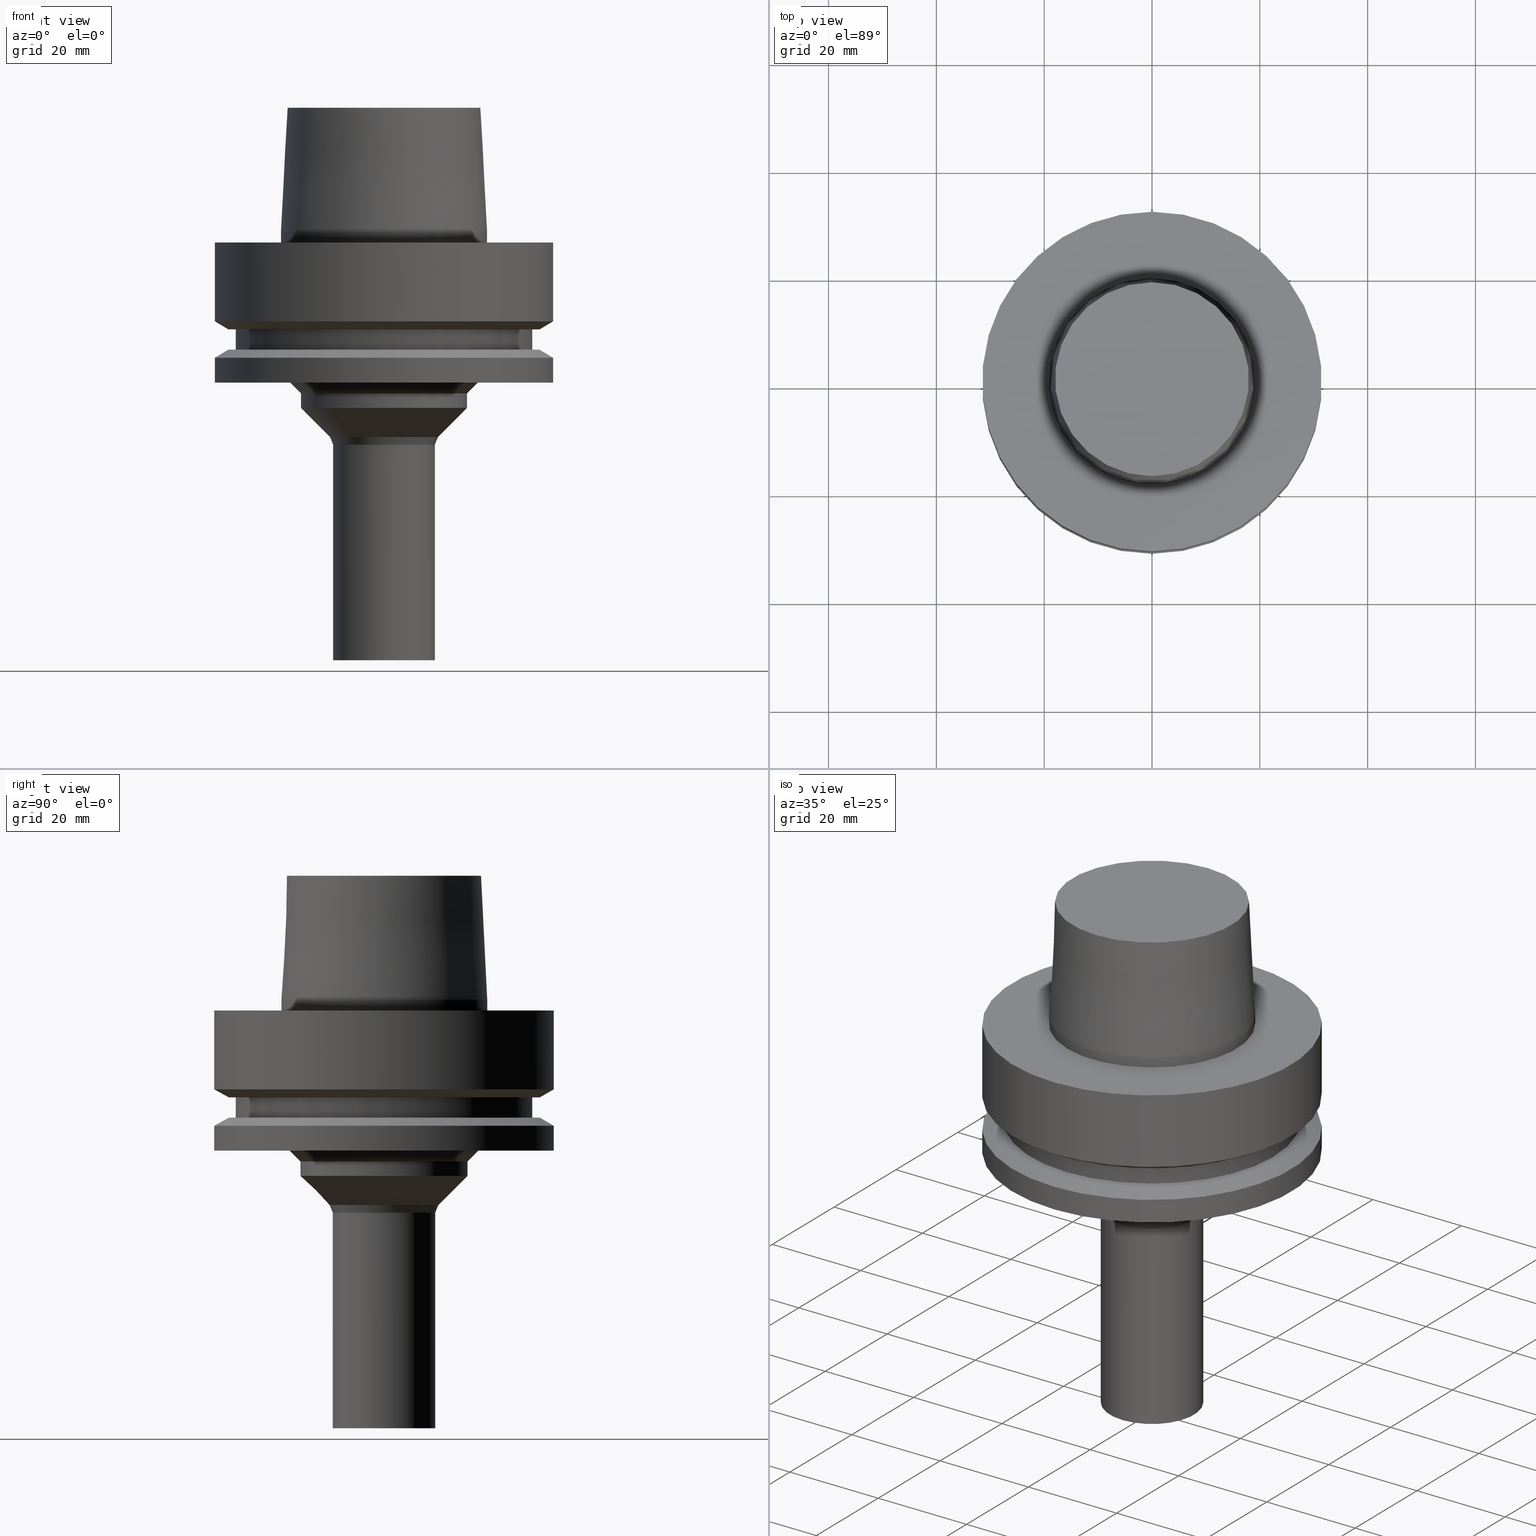
[diagram: canonical four-view strip — front | top / right | iso, engineering-drawing reading convention]
A machine part, canonical four-view strip (front | top / right | iso — engineering-drawing reading convention). The complete STEP part file that produces these views, byte-faithful:
ISO-10303-21;
HEADER;
FILE_DESCRIPTION((''),'1');
FILE_NAME('//Big_tech03/bigt/Translate/21_\X2\8F2A90ED7DDA\X0\-DXF/21_CK\X2\30DC30FC30EA30F330B030B730B930C630E0\X0\/01_CK\X2\30D930FC30B930DB30EB30C0\X0\ CK/HSK/F 63/HSK-F63-CK1-78.stp','2012-05-17T07:51:24',(''),(''),'Spatial Interop R18','Kubotek KeyCreator V8.5.1 (14335)',' ');
FILE_SCHEMA(('CONFIG_CONTROL_DESIGN'));
ENDSEC;
DATA;
#1=DESIGN_CONTEXT('',#27,'design');
#2=APPLICATION_PROTOCOL_DEFINITION('INTERNATIONAL STANDARD','config_control_design',1994,#27);
#3=PRODUCT_CATEGORY_RELATIONSHIP('NONE','NONE',#28,#29);
#4=DATE_AND_TIME(#30,#31);
#5=DATE_TIME_ROLE('creation_date');
#6=DATE_TIME_ROLE('classification_date');
#7=PERSON_AND_ORGANIZATION_ROLE('creator');
#8=PERSON_AND_ORGANIZATION_ROLE('design_supplier');
#9=PERSON_AND_ORGANIZATION_ROLE('classification_officer');
#10=PERSON_AND_ORGANIZATION_ROLE('design_owner');
#11=APPROVAL_PERSON_ORGANIZATION(#32,#33,#34);
#12=APPROVAL_DATE_TIME(#4,#33);
#13=CC_DESIGN_APPROVAL(#33,(#35,#36,#37));
#14=CC_DESIGN_DATE_AND_TIME_ASSIGNMENT(#4,#5,(#37));
#15=CC_DESIGN_DATE_AND_TIME_ASSIGNMENT(#4,#6,(#35));
#16=CC_DESIGN_PERSON_AND_ORGANIZATION_ASSIGNMENT(#32,#10,(#38));
#17=CC_DESIGN_PERSON_AND_ORGANIZATION_ASSIGNMENT(#32,#7,(#37));
#18=CC_DESIGN_PERSON_AND_ORGANIZATION_ASSIGNMENT(#32,#7,(#36));
#19=CC_DESIGN_PERSON_AND_ORGANIZATION_ASSIGNMENT(#32,#8,(#36));
#20=CC_DESIGN_SECURITY_CLASSIFICATION(#35,(#36));
#21=CC_DESIGN_PERSON_AND_ORGANIZATION_ASSIGNMENT(#32,#9,(#35));
#22=SHAPE_DEFINITION_REPRESENTATION(#39,#40);
#23= (GEOMETRIC_REPRESENTATION_CONTEXT(3)GLOBAL_UNCERTAINTY_ASSIGNED_CONTEXT((#43))GLOBAL_UNIT_ASSIGNED_CONTEXT((#45,#46,#47))REPRESENTATION_CONTEXT('NONE','WORKSPACE'));
#27=APPLICATION_CONTEXT('CONFIGURATION CONTROLLED 3D DESIGNS OF MECHANICAL PARTS AND ASSEMBLIES');
#28=PRODUCT_CATEGORY('part','NONE');
#29=PRODUCT_RELATED_PRODUCT_CATEGORY('detail',' ',(#38));
#30=CALENDAR_DATE(2012,17,4);
#31=LOCAL_TIME(16,51,24.0,#49);
#32=PERSON_AND_ORGANIZATION(#50,#51);
#33=APPROVAL(#52,'SOLID MODEL');
#34=APPROVAL_ROLE('APPROVED');
#35=SECURITY_CLASSIFICATION('','',#53);
#36=PRODUCT_DEFINITION_FORMATION_WITH_SPECIFIED_SOURCE(' ','NONE',#38,.NOT_KNOWN.);
#37=PRODUCT_DEFINITION('NONE','NONE',#36,#1);
#38=PRODUCT('1','1','PART-1-DESC',(#54));
#39=PRODUCT_DEFINITION_SHAPE('NONE','NONE',#37);
#40=ADVANCED_BREP_SHAPE_REPRESENTATION('1',(#55,#56),#23);
#43=UNCERTAINTY_MEASURE_WITH_UNIT(LENGTH_MEASURE(1.0E-006),#45,'','');
#45= (CONVERSION_BASED_UNIT('MILLIMETRE',#59)LENGTH_UNIT()NAMED_UNIT(#62));
#46= (NAMED_UNIT(#64)PLANE_ANGLE_UNIT()SI_UNIT($,.RADIAN.));
#47= (NAMED_UNIT(#64)SOLID_ANGLE_UNIT()SI_UNIT($,.STERADIAN.));
#49=COORDINATED_UNIVERSAL_TIME_OFFSET(9,0,.AHEAD.);
#50=PERSON('','UNSPECIFIED',$,$,$,$);
#51=ORGANIZATION('UNSPECIFIED','UNSPECIFIED','UNSPECIFIED');
#52=APPROVAL_STATUS('approved');
#53=SECURITY_CLASSIFICATION_LEVEL('unclassified');
#54=MECHANICAL_CONTEXT('',#27,'mechanical');
#55=MANIFOLD_SOLID_BREP('1',#70);
#56=AXIS2_PLACEMENT_3D('',#71,#72,#73);
#59=LENGTH_MEASURE_WITH_UNIT(LENGTH_MEASURE(1.0),#74);
#62=DIMENSIONAL_EXPONENTS(1.0,0.0,0.0,0.0,0.0,0.0,0.0);
#64=DIMENSIONAL_EXPONENTS(0.0,0.0,0.0,0.0,0.0,0.0,0.0);
#70=CLOSED_SHELL('',(#75,#76,#77,#78,#79,#80,#81,#82,#83,#84,#85,#86,#87,#88,#89,#90,#91,#92));
#71=CARTESIAN_POINT('',(0.0,0.0,0.0));
#72=DIRECTION('',(0.0,0.0,1.0));
#73=DIRECTION('',(1.0,0.0,0.0));
#74= (NAMED_UNIT(#62)LENGTH_UNIT()SI_UNIT(.MILLI.,.METRE.));
#75=ADVANCED_FACE('',(#94,#95),#96,.T.);
#76=ADVANCED_FACE('',(#97,#98),#99,.T.);
#77=ADVANCED_FACE('',(#100,#101),#102,.T.);
#78=ADVANCED_FACE('',(#103,#104),#105,.T.);
#79=ADVANCED_FACE('',(#106,#107),#108,.T.);
#80=ADVANCED_FACE('',(#109,#110),#111,.T.);
#81=ADVANCED_FACE('',(#112,#113),#114,.T.);
#82=ADVANCED_FACE('',(#115,#116),#117,.T.);
#83=ADVANCED_FACE('',(#118,#119),#120,.T.);
#84=ADVANCED_FACE('',(#121,#122),#123,.T.);
#85=ADVANCED_FACE('',(#124,#125),#126,.T.);
#86=ADVANCED_FACE('',(#127,#128),#129,.T.);
#87=ADVANCED_FACE('',(#130,#131),#132,.T.);
#88=ADVANCED_FACE('',(#133,#134),#135,.T.);
#89=ADVANCED_FACE('',(#136,#137),#138,.T.);
#90=ADVANCED_FACE('',(#139),#140,.T.);
#91=ADVANCED_FACE('',(#141),#142,.T.);
#92=ADVANCED_FACE('',(#143,#144),#145,.T.);
#94=FACE_BOUND('',#146,.T.);
#95=FACE_BOUND('',#147,.T.);
#96=CYLINDRICAL_SURFACE('',#148,19.15);
#97=FACE_OUTER_BOUND('',#149,.T.);
#98=FACE_BOUND('',#150,.T.);
#99=PLANE('',#151);
#100=FACE_BOUND('',#152,.T.);
#101=FACE_BOUND('',#153,.T.);
#102=CYLINDRICAL_SURFACE('',#154,31.5);
#103=FACE_BOUND('',#155,.T.);
#104=FACE_BOUND('',#156,.T.);
#105=CONICAL_SURFACE('',#157,30.19879763,1.04719755326565);
#106=FACE_BOUND('',#158,.T.);
#107=FACE_OUTER_BOUND('',#159,.T.);
#108=PLANE('',#160);
#109=FACE_BOUND('',#161,.T.);
#110=FACE_BOUND('',#162,.T.);
#111=CYLINDRICAL_SURFACE('',#163,27.5);
#112=FACE_OUTER_BOUND('',#164,.T.);
#113=FACE_BOUND('',#165,.T.);
#114=PLANE('',#166);
#115=FACE_BOUND('',#167,.T.);
#116=FACE_BOUND('',#168,.T.);
#117=CONICAL_SURFACE('',#169,30.19879763,1.04719755326565);
#118=FACE_BOUND('',#170,.T.);
#119=FACE_BOUND('',#171,.T.);
#120=CYLINDRICAL_SURFACE('',#172,31.5);
#121=FACE_BOUND('',#173,.T.);
#122=FACE_OUTER_BOUND('',#174,.T.);
#123=PLANE('',#175);
#124=FACE_BOUND('',#176,.T.);
#125=FACE_BOUND('',#177,.T.);
#126=CONICAL_SURFACE('',#178,16.5,0.785398163397448);
#127=FACE_BOUND('',#179,.T.);
#128=FACE_BOUND('',#180,.T.);
#129=CYLINDRICAL_SURFACE('',#181,15.5);
#130=FACE_BOUND('',#182,.T.);
#131=FACE_BOUND('',#183,.T.);
#132=CONICAL_SURFACE('',#184,12.7928932171354,0.785398162421138);
#133=FACE_BOUND('',#185,.T.);
#134=FACE_BOUND('',#186,.T.);
#135=CONICAL_SURFACE('',#187,9.79289321713541,0.392699081698725);
#136=FACE_BOUND('',#188,.T.);
#137=FACE_BOUND('',#189,.T.);
#138=CYLINDRICAL_SURFACE('',#190,9.5);
#139=FACE_OUTER_BOUND('',#191,.T.);
#140=PLANE('',#192);
#141=FACE_OUTER_BOUND('',#193,.T.);
#142=PLANE('',#194);
#143=FACE_BOUND('',#195,.T.);
#144=FACE_BOUND('',#196,.T.);
#145=CONICAL_SURFACE('',#197,18.5750000005215,0.049958395676703);
#146=EDGE_LOOP('',(#198));
#147=EDGE_LOOP('',(#199));
#148=AXIS2_PLACEMENT_3D('',#200,#201,#202);
#149=EDGE_LOOP('',(#203));
#150=EDGE_LOOP('',(#204));
#151=AXIS2_PLACEMENT_3D('',#205,#206,#207);
#152=EDGE_LOOP('',(#208));
#153=EDGE_LOOP('',(#209));
#154=AXIS2_PLACEMENT_3D('',#210,#211,#212);
#155=EDGE_LOOP('',(#213));
#156=EDGE_LOOP('',(#214));
#157=AXIS2_PLACEMENT_3D('',#215,#216,#217);
#158=EDGE_LOOP('',(#218));
#159=EDGE_LOOP('',(#219));
#160=AXIS2_PLACEMENT_3D('',#220,#221,#222);
#161=EDGE_LOOP('',(#223));
#162=EDGE_LOOP('',(#224));
#163=AXIS2_PLACEMENT_3D('',#225,#226,#227);
#164=EDGE_LOOP('',(#228));
#165=EDGE_LOOP('',(#229));
#166=AXIS2_PLACEMENT_3D('',#230,#231,#232);
#167=EDGE_LOOP('',(#233));
#168=EDGE_LOOP('',(#234));
#169=AXIS2_PLACEMENT_3D('',#235,#236,#237);
#170=EDGE_LOOP('',(#238));
#171=EDGE_LOOP('',(#239));
#172=AXIS2_PLACEMENT_3D('',#240,#241,#242);
#173=EDGE_LOOP('',(#243));
#174=EDGE_LOOP('',(#244));
#175=AXIS2_PLACEMENT_3D('',#245,#246,#247);
#176=EDGE_LOOP('',(#248));
#177=EDGE_LOOP('',(#249));
#178=AXIS2_PLACEMENT_3D('',#250,#251,#252);
#179=EDGE_LOOP('',(#253));
#180=EDGE_LOOP('',(#254));
#181=AXIS2_PLACEMENT_3D('',#255,#256,#257);
#182=EDGE_LOOP('',(#258));
#183=EDGE_LOOP('',(#259));
#184=AXIS2_PLACEMENT_3D('',#260,#261,#262);
#185=EDGE_LOOP('',(#263));
#186=EDGE_LOOP('',(#264));
#187=AXIS2_PLACEMENT_3D('',#265,#266,#267);
#188=EDGE_LOOP('',(#268));
#189=EDGE_LOOP('',(#269));
#190=AXIS2_PLACEMENT_3D('',#270,#271,#272);
#191=EDGE_LOOP('',(#273));
#192=AXIS2_PLACEMENT_3D('',#274,#275,#276);
#193=EDGE_LOOP('',(#277));
#194=AXIS2_PLACEMENT_3D('',#278,#279,#280);
#195=EDGE_LOOP('',(#281));
#196=EDGE_LOOP('',(#282));
#197=AXIS2_PLACEMENT_3D('',#283,#284,#285);
#198=ORIENTED_EDGE('',*,*,#286,.F.);
#199=ORIENTED_EDGE('',*,*,#287,.T.);
#200=CARTESIAN_POINT('',(-6.12323399573677E-017,-1.22464679914735E-016,1.0));
#201=DIRECTION('',(-6.12323399573677E-017,-1.22464679914735E-016,1.0));
#202=DIRECTION('',(-1.23259516440783E-032,1.0,1.22464679914735E-016));
#203=ORIENTED_EDGE('',*,*,#288,.F.);
#204=ORIENTED_EDGE('',*,*,#286,.T.);
#205=CARTESIAN_POINT('',(-3.09093108388415E-031,25.325,3.05141801884067E-015));
#206=DIRECTION('',(-6.12323399573677E-017,-1.14367513922832E-016,1.0));
#207=DIRECTION('',(1.18301432233709E-032,-1.0,-1.14367513922832E-016));
#208=ORIENTED_EDGE('',*,*,#289,.F.);
#209=ORIENTED_EDGE('',*,*,#288,.T.);
#210=CARTESIAN_POINT('',(4.47684973986342E-016,8.95369947972684E-016,-7.311250465));
#211=DIRECTION('',(-6.12323399573677E-017,-1.22464679914735E-016,1.0));
#212=DIRECTION('',(-1.23259516440783E-032,1.0,1.22464679914735E-016));
#213=ORIENTED_EDGE('',*,*,#290,.F.);
#214=ORIENTED_EDGE('',*,*,#289,.T.);
#215=CARTESIAN_POINT('',(9.41370714892619E-016,1.88274142978524E-015,-15.373750465));
#216=DIRECTION('',(-6.12323399573677E-017,-1.22464679914735E-016,1.0));
#217=DIRECTION('',(-1.23259516440783E-032,1.0,1.22464679914735E-016));
#218=ORIENTED_EDGE('',*,*,#291,.F.);
#219=ORIENTED_EDGE('',*,*,#290,.T.);
#220=CARTESIAN_POINT('',(9.87371481812553E-016,28.19879763,-16.125));
#221=DIRECTION('',(6.12323399573677E-017,1.22464679914735E-016,-1.0));
#222=DIRECTION('',(-1.23259516440783E-032,1.0,1.22464679914735E-016));
#223=ORIENTED_EDGE('',*,*,#292,.F.);
#224=ORIENTED_EDGE('',*,*,#291,.T.);
#225=CARTESIAN_POINT('',(1.10218211923262E-015,2.20436423846524E-015,-18.0));
#226=DIRECTION('',(-6.12323399573677E-017,-1.22464679914735E-016,1.0));
#227=DIRECTION('',(-1.23259516440783E-032,1.0,1.22464679914735E-016));
#228=ORIENTED_EDGE('',*,*,#293,.F.);
#229=ORIENTED_EDGE('',*,*,#292,.T.);
#230=CARTESIAN_POINT('',(1.21699275665268E-015,28.19879763,-19.875));
#231=DIRECTION('',(-6.12323399573677E-017,-1.22464679914735E-016,1.0));
#232=DIRECTION('',(1.23259516440783E-032,-1.0,-1.22464679914735E-016));
#233=ORIENTED_EDGE('',*,*,#294,.F.);
#234=ORIENTED_EDGE('',*,*,#293,.T.);
#235=CARTESIAN_POINT('',(1.26299352357262E-015,2.52598704714523E-015,-20.626249535));
#236=DIRECTION('',(6.12323399573677E-017,1.22464679914735E-016,-1.0));
#237=DIRECTION('',(-1.23259516440783E-032,1.0,1.22464679914735E-016));
#238=ORIENTED_EDGE('',*,*,#295,.F.);
#239=ORIENTED_EDGE('',*,*,#294,.T.);
#240=CARTESIAN_POINT('',(1.45051756469205E-015,2.90103512938411E-015,-23.688749535));
#241=DIRECTION('',(-6.12323399573677E-017,-1.22464679914735E-016,1.0));
#242=DIRECTION('',(-1.23259516440783E-032,1.0,1.22464679914735E-016));
#243=ORIENTED_EDGE('',*,*,#296,.F.);
#244=ORIENTED_EDGE('',*,*,#295,.T.);
#245=CARTESIAN_POINT('',(1.59204083889156E-015,24.5,-26.0));
#246=DIRECTION('',(6.12323399573677E-017,1.22464679914735E-016,-1.0));
#247=DIRECTION('',(-1.23259516440783E-032,1.0,1.22464679914735E-016));
#248=ORIENTED_EDGE('',*,*,#297,.F.);
#249=ORIENTED_EDGE('',*,*,#296,.T.);
#250=CARTESIAN_POINT('',(1.65327317884893E-015,3.30654635769785E-015,-27.0));
#251=DIRECTION('',(-6.12323399573677E-017,-1.22464679914735E-016,1.0));
#252=DIRECTION('',(-1.23259516440783E-032,1.0,1.22464679914735E-016));
#253=ORIENTED_EDGE('',*,*,#298,.F.);
#254=ORIENTED_EDGE('',*,*,#297,.T.);
#255=CARTESIAN_POINT('',(1.79629884788715E-015,3.59259769577429E-015,-29.335786434714));
#256=DIRECTION('',(-6.12323399573677E-017,-1.22464679914735E-016,1.0));
#257=DIRECTION('',(-1.23259516440783E-032,1.0,1.22464679914735E-016));
#258=ORIENTED_EDGE('',*,*,#299,.F.);
#259=ORIENTED_EDGE('',*,*,#298,.T.);
#260=CARTESIAN_POINT('',(2.04385466012093E-015,4.08770932024185E-015,-33.3786796575786));
#261=DIRECTION('',(-6.12323399573677E-017,-1.22464679914735E-016,1.0));
#262=DIRECTION('',(-1.23259516440783E-032,1.0,1.22464679914735E-016));
#263=ORIENTED_EDGE('',*,*,#300,.F.);
#264=ORIENTED_EDGE('',*,*,#299,.T.);
#265=CARTESIAN_POINT('',(2.25291494583757E-015,4.50582989167514E-015,-36.7928932228646));
#266=DIRECTION('',(-6.12323399573677E-017,-1.22464679914735E-016,1.0));
#267=DIRECTION('',(-1.23259516440783E-032,1.0,1.22464679914735E-016));
#268=ORIENTED_EDGE('',*,*,#301,.F.);
#269=ORIENTED_EDGE('',*,*,#300,.T.);
#270=CARTESIAN_POINT('',(3.52085954754864E-015,7.04171909509728E-015,-57.5));
#271=DIRECTION('',(-6.12323399573677E-017,-1.22464679914735E-016,1.0));
#272=DIRECTION('',(-1.23259516440783E-032,1.0,1.22464679914735E-016));
#273=ORIENTED_EDGE('',*,*,#301,.T.);
#274=CARTESIAN_POINT('',(4.74550634669599E-015,4.75000000000001,-77.5));
#275=DIRECTION('',(6.12323399573677E-017,1.22464679914735E-016,-1.0));
#276=DIRECTION('',(-1.23259516440783E-032,1.0,1.22464679914735E-016));
#277=ORIENTED_EDGE('',*,*,#302,.F.);
#278=CARTESIAN_POINT('',(-1.53080849893419E-015,9.00000000052154,25.0));
#279=DIRECTION('',(-6.12323399573677E-017,-1.22464679914735E-016,1.0));
#280=DIRECTION('',(1.23259516440783E-032,-1.0,-1.22464679914735E-016));
#281=ORIENTED_EDGE('',*,*,#287,.F.);
#282=ORIENTED_EDGE('',*,*,#302,.T.);
#283=CARTESIAN_POINT('',(-8.26636589424463E-016,-1.65327317884893E-015,13.5));
#284=DIRECTION('',(6.12323399573677E-017,1.22464679914735E-016,-1.0));
#285=DIRECTION('',(-1.23259516440783E-032,1.0,1.22464679914735E-016));
#286=EDGE_CURVE('',#303,#303,#304,.T.);
#287=EDGE_CURVE('',#305,#305,#306,.T.);
#288=EDGE_CURVE('',#307,#307,#308,.T.);
#289=EDGE_CURVE('',#309,#309,#310,.T.);
#290=EDGE_CURVE('',#311,#311,#312,.T.);
#291=EDGE_CURVE('',#313,#313,#314,.T.);
#292=EDGE_CURVE('',#315,#315,#316,.T.);
#293=EDGE_CURVE('',#317,#317,#318,.T.);
#294=EDGE_CURVE('',#319,#319,#320,.T.);
#295=EDGE_CURVE('',#321,#321,#322,.T.);
#296=EDGE_CURVE('',#323,#323,#324,.T.);
#297=EDGE_CURVE('',#325,#325,#326,.T.);
#298=EDGE_CURVE('',#327,#327,#328,.T.);
#299=EDGE_CURVE('',#329,#329,#330,.T.);
#300=EDGE_CURVE('',#331,#331,#332,.T.);
#301=EDGE_CURVE('',#333,#333,#334,.T.);
#302=EDGE_CURVE('',#335,#335,#336,.T.);
#303=VERTEX_POINT('',#337);
#304=CIRCLE('',#338,19.15);
#305=VERTEX_POINT('',#339);
#306=CIRCLE('',#340,19.15);
#307=VERTEX_POINT('',#341);
#308=CIRCLE('',#342,31.5);
#309=VERTEX_POINT('',#343);
#310=CIRCLE('',#344,31.5);
#311=VERTEX_POINT('',#345);
#312=CIRCLE('',#346,28.89759526);
#313=VERTEX_POINT('',#347);
#314=CIRCLE('',#348,27.5);
#315=VERTEX_POINT('',#349);
#316=CIRCLE('',#350,27.5);
#317=VERTEX_POINT('',#351);
#318=CIRCLE('',#352,28.89759526);
#319=VERTEX_POINT('',#353);
#320=CIRCLE('',#354,31.5);
#321=VERTEX_POINT('',#355);
#322=CIRCLE('',#356,31.5);
#323=VERTEX_POINT('',#357);
#324=CIRCLE('',#358,17.5);
#325=VERTEX_POINT('',#359);
#326=CIRCLE('',#360,15.5);
#327=VERTEX_POINT('',#361);
#328=CIRCLE('',#362,15.5);
#329=VERTEX_POINT('',#363);
#330=CIRCLE('',#364,10.0857864342708);
#331=VERTEX_POINT('',#365);
#332=CIRCLE('',#366,9.5);
#333=VERTEX_POINT('',#367);
#334=CIRCLE('',#368,9.5);
#335=VERTEX_POINT('',#369);
#336=CIRCLE('',#370,18.0000000010431);
#337=CARTESIAN_POINT('',(-2.360419739841E-031,19.15,2.34519862036718E-015));
#338=AXIS2_PLACEMENT_3D('',#371,#372,#373);
#339=CARTESIAN_POINT('',(-1.22464679914736E-016,19.15,2.0));
#340=AXIS2_PLACEMENT_3D('',#374,#375,#376);
#341=CARTESIAN_POINT('',(-3.8214424279273E-031,31.5,3.75763741731416E-015));
#342=AXIS2_PLACEMENT_3D('',#377,#378,#379);
#343=CARTESIAN_POINT('',(8.95369947972684E-016,31.5,-14.62250093));
#344=AXIS2_PLACEMENT_3D('',#380,#381,#382);
#345=CARTESIAN_POINT('',(9.87371481812553E-016,28.89759526,-16.125));
#346=AXIS2_PLACEMENT_3D('',#383,#384,#385);
#347=CARTESIAN_POINT('',(9.87371481812553E-016,27.5,-16.125));
#348=AXIS2_PLACEMENT_3D('',#386,#387,#388);
#349=CARTESIAN_POINT('',(1.21699275665268E-015,27.5,-19.875));
#350=AXIS2_PLACEMENT_3D('',#389,#390,#391);
#351=CARTESIAN_POINT('',(1.21699275665268E-015,28.89759526,-19.875));
#352=AXIS2_PLACEMENT_3D('',#392,#393,#394);
#353=CARTESIAN_POINT('',(1.30899429049255E-015,31.5,-21.37749907));
#354=AXIS2_PLACEMENT_3D('',#395,#396,#397);
#355=CARTESIAN_POINT('',(1.59204083889156E-015,31.5,-26.0));
#356=AXIS2_PLACEMENT_3D('',#398,#399,#400);
#357=CARTESIAN_POINT('',(1.59204083889156E-015,17.5,-26.0));
#358=AXIS2_PLACEMENT_3D('',#401,#402,#403);
#359=CARTESIAN_POINT('',(1.71450551880629E-015,15.5,-28.0));
#360=AXIS2_PLACEMENT_3D('',#404,#405,#406);
#361=CARTESIAN_POINT('',(1.878092176968E-015,15.5,-30.6715728694281));
#362=AXIS2_PLACEMENT_3D('',#407,#408,#409);
#363=CARTESIAN_POINT('',(2.20961714327386E-015,10.0857864342708,-36.0857864457292));
#364=AXIS2_PLACEMENT_3D('',#410,#411,#412);
#365=CARTESIAN_POINT('',(2.29621274840128E-015,9.50000000000001,-37.5));
#366=AXIS2_PLACEMENT_3D('',#413,#414,#415);
#367=CARTESIAN_POINT('',(4.74550634669599E-015,9.50000000000001,-77.5));
#368=AXIS2_PLACEMENT_3D('',#416,#417,#418);
#369=CARTESIAN_POINT('',(-1.53080849893419E-015,18.0000000010431,25.0));
#370=AXIS2_PLACEMENT_3D('',#419,#420,#421);
#371=CARTESIAN_POINT('',(0.0,0.0,0.0));
#372=DIRECTION('',(6.12323399573677E-017,1.22464679914735E-016,-1.0));
#373=DIRECTION('',(-1.23259516440783E-032,1.0,1.22464679914735E-016));
#374=CARTESIAN_POINT('',(-1.22464679914735E-016,-2.44929359829471E-016,2.0));
#375=DIRECTION('',(6.12323399573677E-017,1.22464679914735E-016,-1.0));
#376=DIRECTION('',(-1.23259516440783E-032,1.0,1.22464679914735E-016));
#377=CARTESIAN_POINT('',(0.0,0.0,0.0));
#378=DIRECTION('',(6.12323399573677E-017,1.22464679914735E-016,-1.0));
#379=DIRECTION('',(-1.23259516440783E-032,1.0,1.22464679914735E-016));
#380=CARTESIAN_POINT('',(8.95369947972685E-016,1.79073989594537E-015,-14.62250093));
#381=DIRECTION('',(6.12323399573677E-017,1.22464679914735E-016,-1.0));
#382=DIRECTION('',(-1.23259516440783E-032,1.0,1.22464679914735E-016));
#383=CARTESIAN_POINT('',(9.87371481812553E-016,1.97474296362511E-015,-16.125));
#384=DIRECTION('',(6.12323399573677E-017,1.22464679914735E-016,-1.0));
#385=DIRECTION('',(-1.23259516440783E-032,1.0,1.22464679914735E-016));
#386=CARTESIAN_POINT('',(9.87371481812553E-016,1.97474296362511E-015,-16.125));
#387=DIRECTION('',(6.12323399573677E-017,1.22464679914735E-016,-1.0));
#388=DIRECTION('',(-1.23259516440783E-032,1.0,1.22464679914735E-016));
#389=CARTESIAN_POINT('',(1.21699275665268E-015,2.43398551330536E-015,-19.875));
#390=DIRECTION('',(6.12323399573677E-017,1.22464679914735E-016,-1.0));
#391=DIRECTION('',(-1.23259516440783E-032,1.0,1.22464679914735E-016));
#392=CARTESIAN_POINT('',(1.21699275665268E-015,2.43398551330536E-015,-19.875));
#393=DIRECTION('',(6.12323399573677E-017,1.22464679914735E-016,-1.0));
#394=DIRECTION('',(-1.23259516440783E-032,1.0,1.22464679914735E-016));
#395=CARTESIAN_POINT('',(1.30899429049255E-015,2.6179885809851E-015,-21.37749907));
#396=DIRECTION('',(6.12323399573677E-017,1.22464679914735E-016,-1.0));
#397=DIRECTION('',(-1.23259516440783E-032,1.0,1.22464679914735E-016));
#398=CARTESIAN_POINT('',(1.59204083889156E-015,3.18408167778312E-015,-26.0));
#399=DIRECTION('',(6.12323399573677E-017,1.22464679914735E-016,-1.0));
#400=DIRECTION('',(-1.23259516440783E-032,1.0,1.22464679914735E-016));
#401=CARTESIAN_POINT('',(1.59204083889156E-015,3.18408167778312E-015,-26.0));
#402=DIRECTION('',(6.12323399573677E-017,1.22464679914735E-016,-1.0));
#403=DIRECTION('',(-1.23259516440783E-032,1.0,1.22464679914735E-016));
#404=CARTESIAN_POINT('',(1.71450551880629E-015,3.42901103761259E-015,-28.0));
#405=DIRECTION('',(6.12323399573677E-017,1.22464679914735E-016,-1.0));
#406=DIRECTION('',(-1.23259516440783E-032,1.0,1.22464679914735E-016));
#407=CARTESIAN_POINT('',(1.878092176968E-015,3.75618435393599E-015,-30.6715728694281));
#408=DIRECTION('',(6.12323399573677E-017,1.22464679914735E-016,-1.0));
#409=DIRECTION('',(-1.23259516440783E-032,1.0,1.22464679914735E-016));
#410=CARTESIAN_POINT('',(2.20961714327386E-015,4.41923428654772E-015,-36.0857864457292));
#411=DIRECTION('',(6.12323399573677E-017,1.22464679914735E-016,-1.0));
#412=DIRECTION('',(-1.23259516440783E-032,1.0,1.22464679914735E-016));
#413=CARTESIAN_POINT('',(2.29621274840128E-015,4.59242549680257E-015,-37.5));
#414=DIRECTION('',(6.12323399573677E-017,1.22464679914735E-016,-1.0));
#415=DIRECTION('',(-1.23259516440783E-032,1.0,1.22464679914735E-016));
#416=CARTESIAN_POINT('',(4.74550634669599E-015,9.49101269339199E-015,-77.5));
#417=DIRECTION('',(6.12323399573677E-017,1.22464679914735E-016,-1.0));
#418=DIRECTION('',(-1.23259516440783E-032,1.0,1.22464679914735E-016));
#419=CARTESIAN_POINT('',(-1.53080849893419E-015,-3.06161699786838E-015,25.0));
#420=DIRECTION('',(6.12323399573677E-017,1.22464679914735E-016,-1.0));
#421=DIRECTION('',(-1.23259516440783E-032,1.0,1.22464679914735E-016));
ENDSEC;
END-ISO-10303-21;
